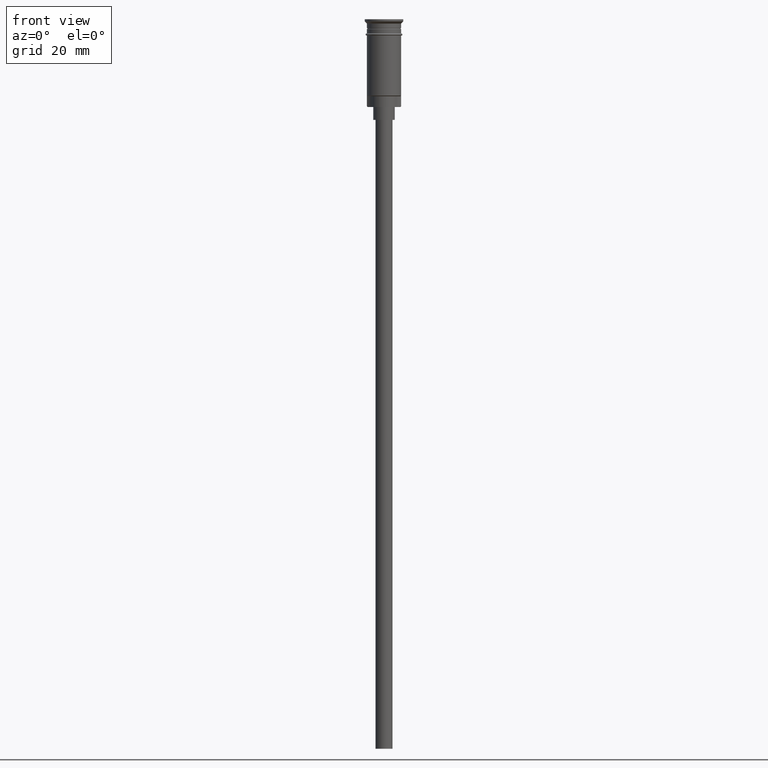
[diagram: clean part render]
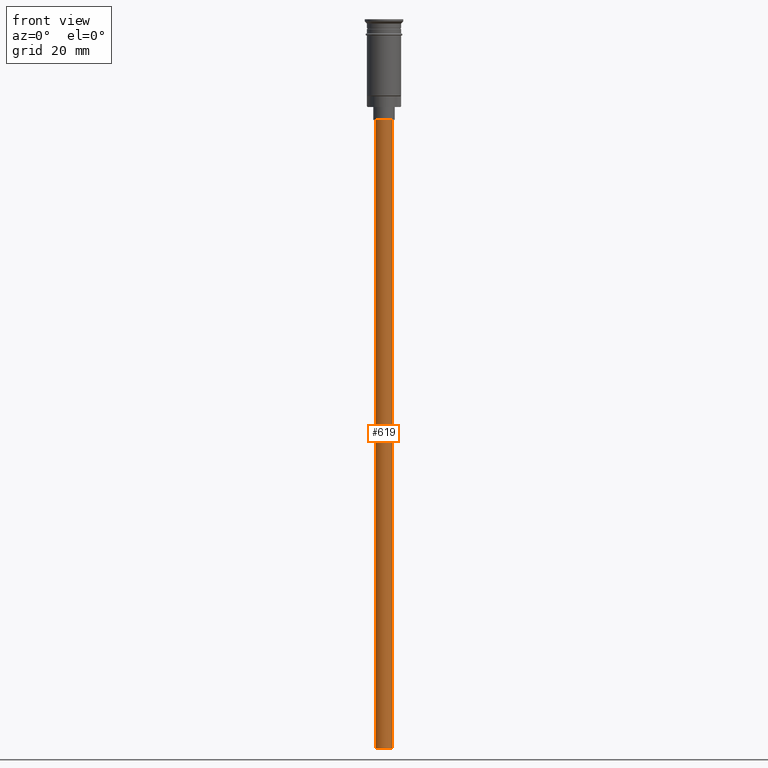
[diagram: same view with one face highlighted and labeled with its STEP entity id]
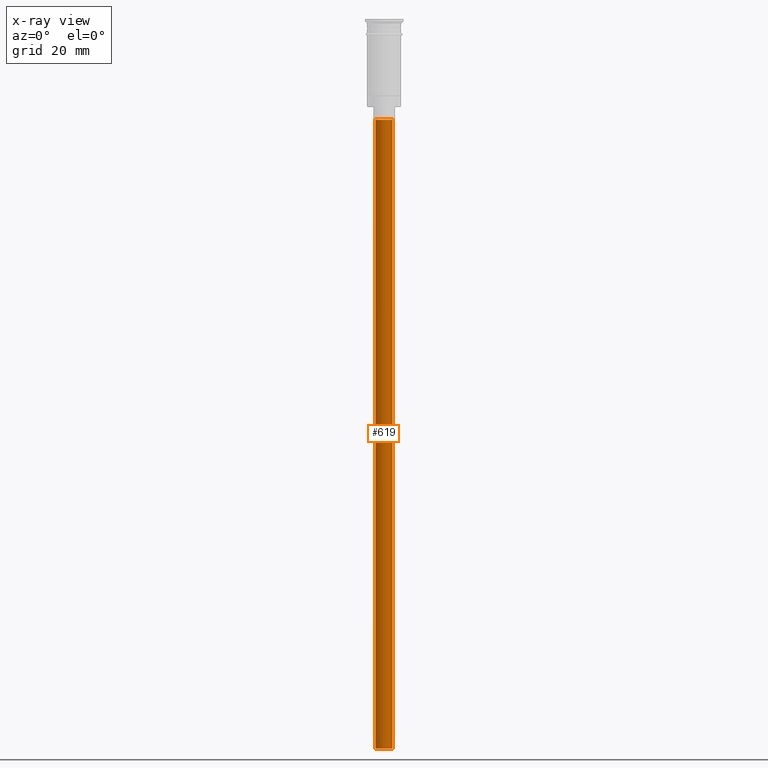
[diagram: x-ray of the same camera — body ghosted, the highlighted face saturated]
A machine part, front view. The second image highlights one B-rep face of the part: STEP entity #619.
The next image is the same camera in x-ray: the body ghosted, the highlighted face saturated — about 0% of this face is hidden behind the body in this view.
In plain terms, the highlighted cylindrical surface (edge-blend (fillet) strip) has radius 2 mm, axis along (-0, -0, 1).
Its self-contained STEP definition (entity closure, byte-faithful):
#39 = DIRECTION ( 'NONE',  ( 0.000000000000000000, 0.000000000000000000, -1.000000000000000000 ) ) ;
#117 = DIRECTION ( 'NONE',  ( -0.000000000000000000, -0.000000000000000000, 1.000000000000000000 ) ) ;
#249 = CARTESIAN_POINT ( 'NONE',  ( 2.000000000000000000, 0.000000000000000000, -170.4999999999999716 ) ) ;
#282 = ORIENTED_EDGE ( 'NONE', *, *, #1255, .T. ) ;
#291 = DIRECTION ( 'NONE',  ( -0.000000000000000000, -0.000000000000000000, 1.000000000000000000 ) ) ;
#369 = ORIENTED_EDGE ( 'NONE', *, *, #1605, .T. ) ;
#376 = VECTOR ( 'NONE', #117, 1000.000000000000000 ) ;
#412 = LINE ( 'NONE', #645, #1394 ) ;
#428 = AXIS2_PLACEMENT_3D ( 'NONE', #1090, #712, #1602 ) ;
#476 = CARTESIAN_POINT ( 'NONE',  ( 0.000000000000000000, 0.000000000000000000, -23.49999999999999645 ) ) ;
#522 = ORIENTED_EDGE ( 'NONE', *, *, #1475, .F. ) ;
#588 = AXIS2_PLACEMENT_3D ( 'NONE', #1025, #39, #1135 ) ;
#609 = CIRCLE ( 'NONE', #1439, 2.000000000000000000 ) ;
#619 = ADVANCED_FACE ( 'NONE', ( #1075 ), #955, .T. ) ;
#645 = CARTESIAN_POINT ( 'NONE',  ( -2.000000000000000000, 2.449293598294706414E-16, -170.4999999999999716 ) ) ;
#682 = VERTEX_POINT ( 'NONE', #1238 ) ;
#712 = DIRECTION ( 'NONE',  ( -0.000000000000000000, -0.000000000000000000, 1.000000000000000000 ) ) ;
#785 = EDGE_CURVE ( 'NONE', #682, #1123, #412, .T. ) ;
#786 = ORIENTED_EDGE ( 'NONE', *, *, #785, .F. ) ;
#828 = LINE ( 'NONE', #249, #376 ) ;
#941 = CIRCLE ( 'NONE', #588, 2.000000000000000000 ) ;
#955 = CYLINDRICAL_SURFACE ( 'NONE', #428, 2.000000000000000000 ) ;
#1025 = CARTESIAN_POINT ( 'NONE',  ( 0.000000000000000000, 0.000000000000000000, -170.4999999999999716 ) ) ;
#1075 = FACE_OUTER_BOUND ( 'NONE', #1558, .T. ) ;
#1090 = CARTESIAN_POINT ( 'NONE',  ( 0.000000000000000000, 0.000000000000000000, -170.4999999999999716 ) ) ;
#1111 = CARTESIAN_POINT ( 'NONE',  ( 2.000000000000000000, 0.000000000000000000, -170.4999999999999716 ) ) ;
#1123 = VERTEX_POINT ( 'NONE', #1550 ) ;
#1135 = DIRECTION ( 'NONE',  ( -1.000000000000000000, 0.000000000000000000, 0.000000000000000000 ) ) ;
#1233 = VERTEX_POINT ( 'NONE', #1333 ) ;
#1238 = CARTESIAN_POINT ( 'NONE',  ( -2.000000000000000000, 2.449293598294706414E-16, -170.4999999999999716 ) ) ;
#1255 = EDGE_CURVE ( 'NONE', #1378, #1233, #828, .T. ) ;
#1333 = CARTESIAN_POINT ( 'NONE',  ( 2.000000000000000000, 0.000000000000000000, -23.49999999999999645 ) ) ;
#1378 = VERTEX_POINT ( 'NONE', #1111 ) ;
#1394 = VECTOR ( 'NONE', #291, 1000.000000000000000 ) ;
#1439 = AXIS2_PLACEMENT_3D ( 'NONE', #476, #1564, #1450 ) ;
#1450 = DIRECTION ( 'NONE',  ( -1.000000000000000000, 0.000000000000000000, 0.000000000000000000 ) ) ;
#1475 = EDGE_CURVE ( 'NONE', #1378, #682, #941, .T. ) ;
#1550 = CARTESIAN_POINT ( 'NONE',  ( -2.000000000000000000, 2.449293598294706414E-16, -23.49999999999999645 ) ) ;
#1558 = EDGE_LOOP ( 'NONE', ( #786, #522, #282, #369 ) ) ;
#1564 = DIRECTION ( 'NONE',  ( 0.000000000000000000, 0.000000000000000000, -1.000000000000000000 ) ) ;
#1602 = DIRECTION ( 'NONE',  ( 1.000000000000000000, 0.000000000000000000, 0.000000000000000000 ) ) ;
#1605 = EDGE_CURVE ( 'NONE', #1233, #1123, #609, .T. ) ;